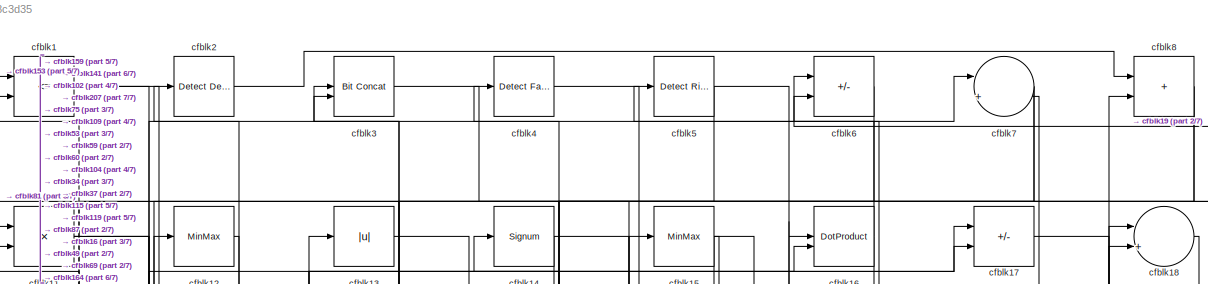
[diagram: root canvas - part 1/7, full width, top band]
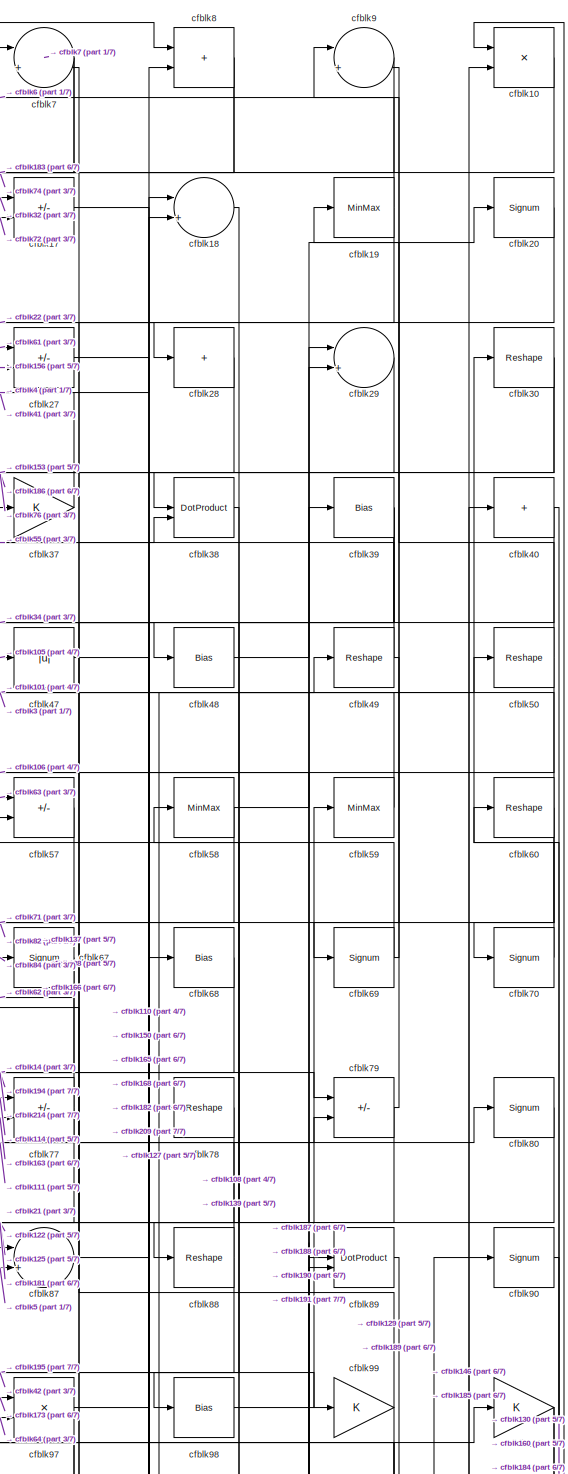
[diagram: root canvas - part 2/7, top right region]
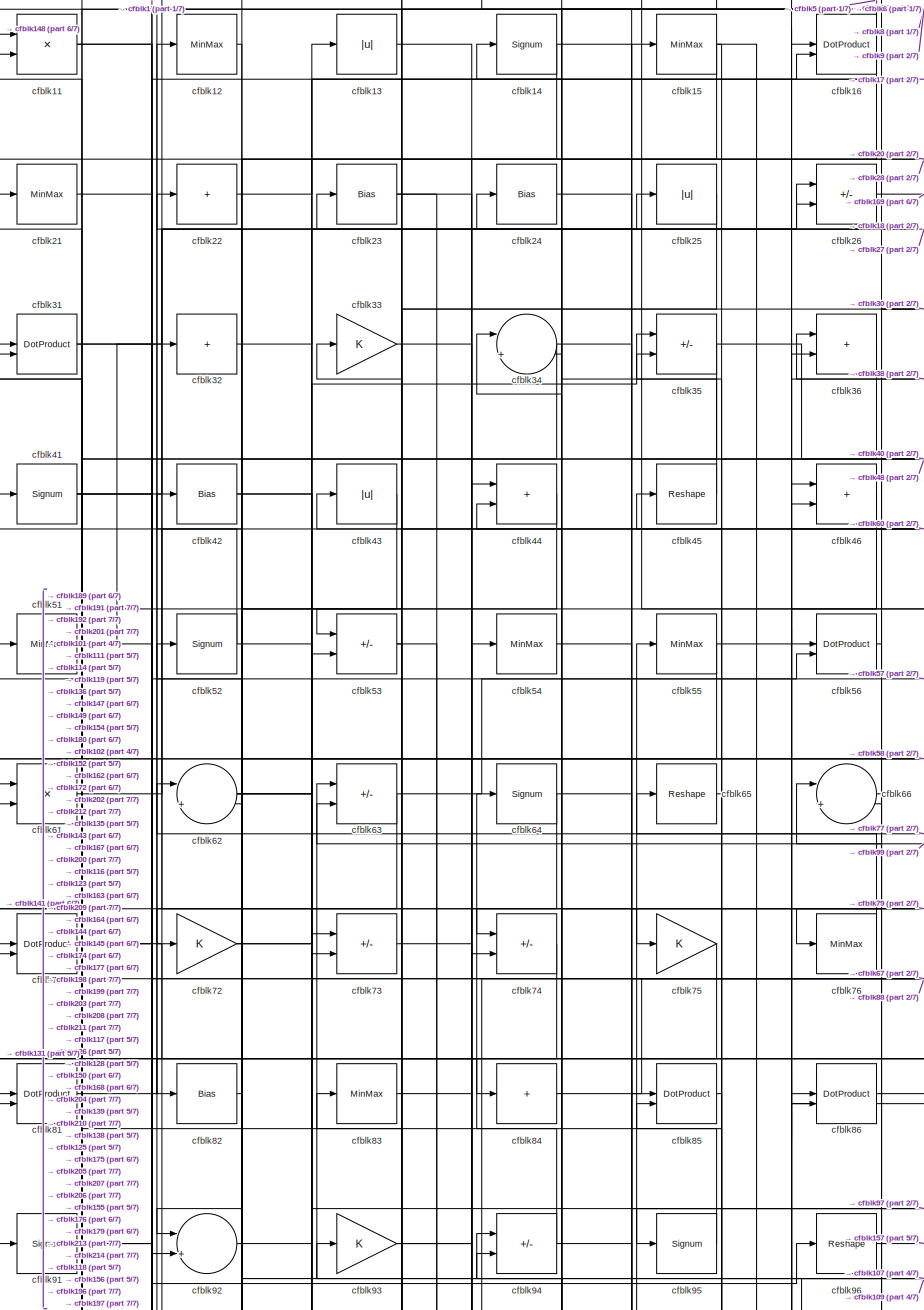
[diagram: root canvas - part 3/7, top left region]
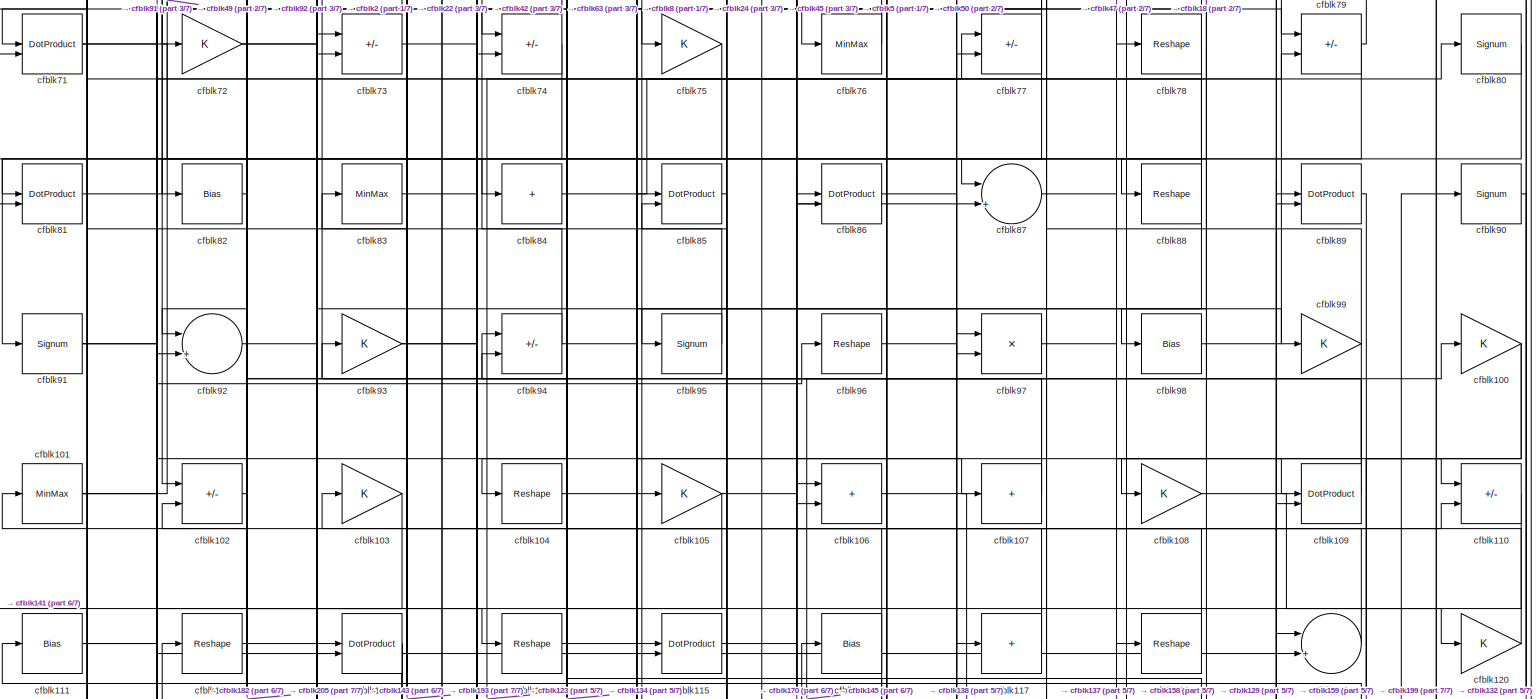
[diagram: root canvas - part 4/7, full width, middle band]
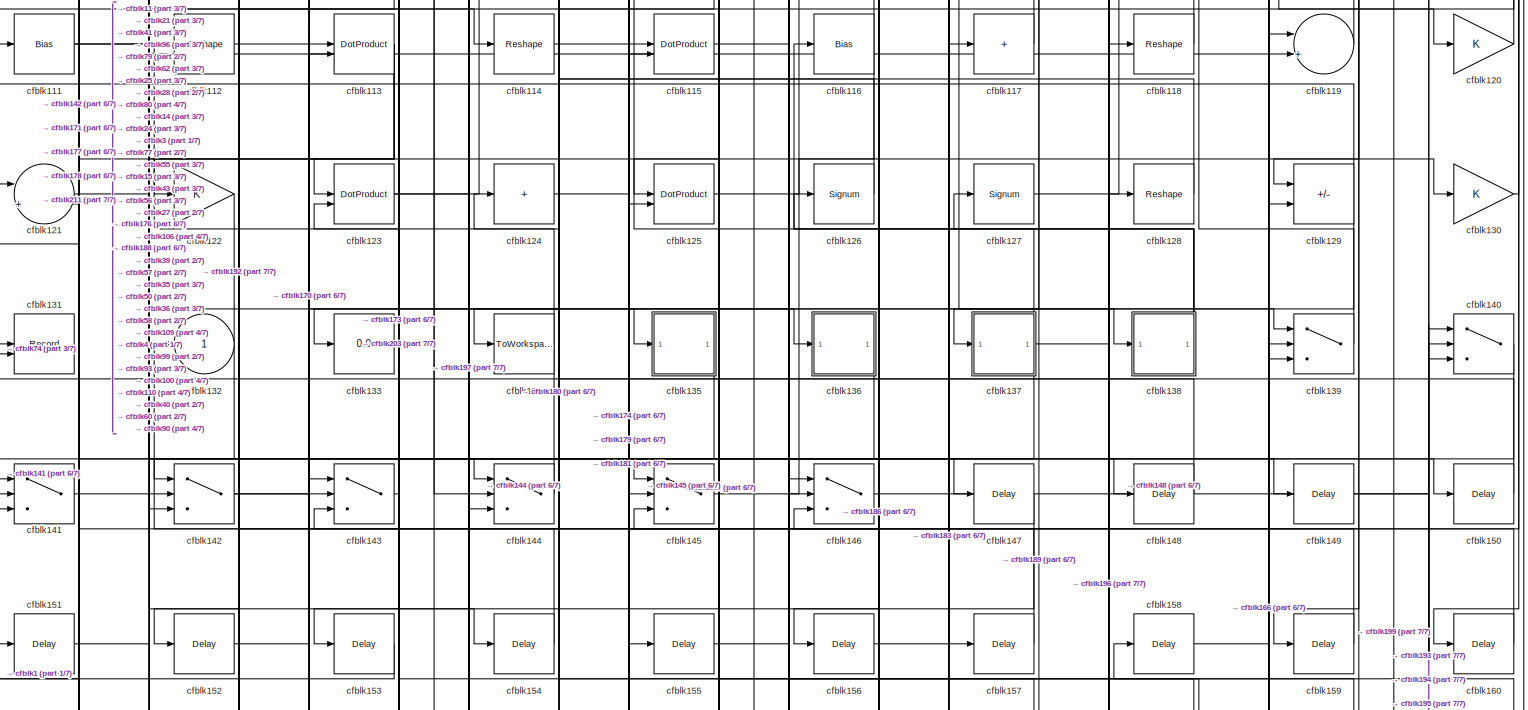
[diagram: root canvas - part 5/7, full width, middle band]
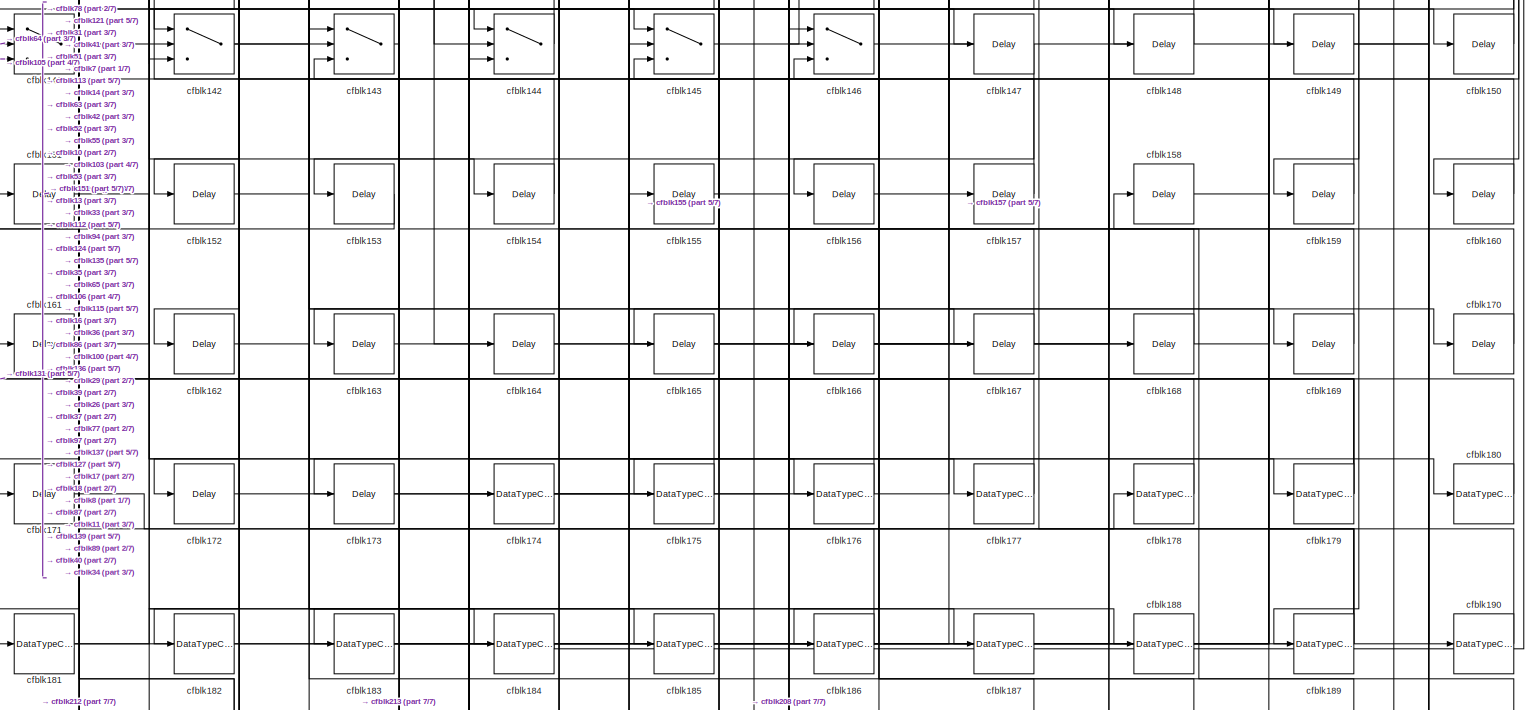
[diagram: root canvas - part 6/7, full width, bottom band]
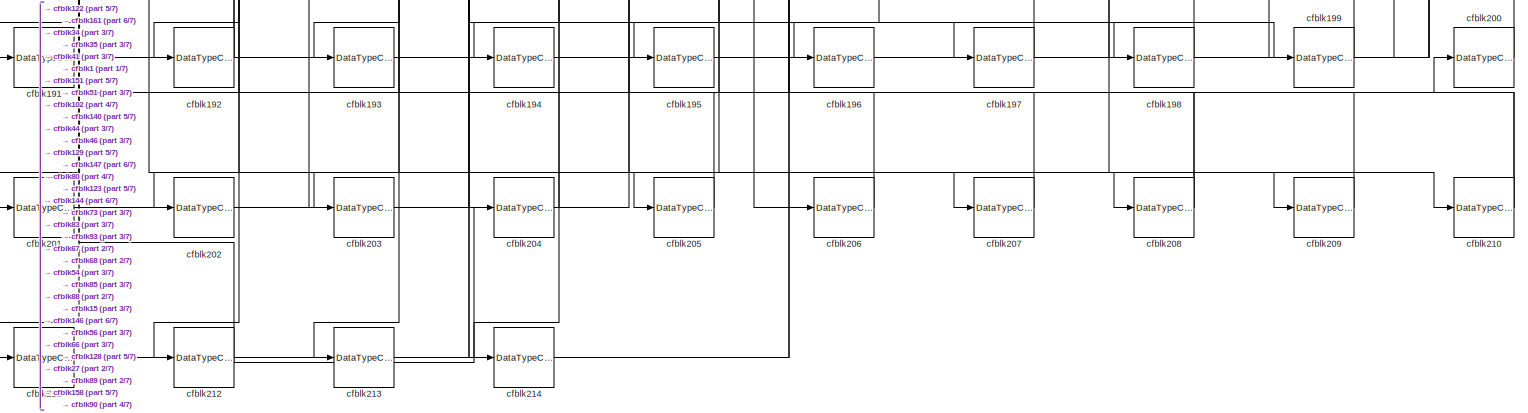
[diagram: root canvas - part 7/7, full width, bottom band]
MODEL slx_3350518c3d35
KIND model
CONFIG AbsTol = auto
CONFIG EnableMultiTasking = off
CONFIG FixedStep = auto
CONFIG MaxStep = auto
CONFIG MinStep = auto
CONFIG RelTol = 1e-3
CONFIG SampleTimeConstraint = Unconstrained
CONFIG SolverName = VariableStepAuto
CONFIG StartTime = 0.0
CONFIG StopTime = 10.0
BLOCK [RelationalOperator] cfblk1
  InputSameDT = off
  Operator = <=
  OutDataTypeStr = boolean
BLOCK [Product] cfblk10
  Inputs = */
  RndMeth = Zero
  SaturateOnIntegerOverflow = on
BLOCK [Gain] cfblk100
BLOCK [MinMax] cfblk101
BLOCK [Sum] cfblk102
  IconShape = rectangular
  Inputs = +-
BLOCK [Gain] cfblk103
BLOCK [Reshape] cfblk104
BLOCK [Gain] cfblk105
BLOCK [Sum] cfblk106
  IconShape = rectangular
BLOCK [Sum] cfblk107
  IconShape = rectangular
  Inputs = +
BLOCK [Gain] cfblk108
BLOCK [DotProduct] cfblk109
  OutDataTypeStr = Inherit: Inherit via internal rule
BLOCK [Product] cfblk11
  Inputs = */
  RndMeth = Zero
  SaturateOnIntegerOverflow = on
BLOCK [Sum] cfblk110
  IconShape = rectangular
  Inputs = +-
BLOCK [Bias] cfblk111
  Bias = 0.0
  SaturateOnIntegerOverflow = off
BLOCK [Reshape] cfblk112
BLOCK [DotProduct] cfblk113
  OutDataTypeStr = Inherit: Inherit via internal rule
BLOCK [Reshape] cfblk114
BLOCK [DotProduct] cfblk115
  OutDataTypeStr = Inherit: Inherit via internal rule
BLOCK [Bias] cfblk116
  Bias = 0.0
  SaturateOnIntegerOverflow = off
BLOCK [Sum] cfblk117
  IconShape = rectangular
  Inputs = +
BLOCK [Reshape] cfblk118
BLOCK [Sum] cfblk119
  Inputs = |++
BLOCK [MinMax] cfblk12
BLOCK [Gain] cfblk120
BLOCK [Sum] cfblk121
  Inputs = |++
BLOCK [Gain] cfblk122
BLOCK [DotProduct] cfblk123
  OutDataTypeStr = Inherit: Inherit via internal rule
BLOCK [Sum] cfblk124
  IconShape = rectangular
  Inputs = +
BLOCK [DotProduct] cfblk125
  OutDataTypeStr = Inherit: Inherit via internal rule
BLOCK [Signum] cfblk126
BLOCK [Signum] cfblk127
BLOCK [Reshape] cfblk128
BLOCK [Sum] cfblk129
  IconShape = rectangular
  Inputs = +-
BLOCK [Abs] cfblk13
  SaturateOnIntegerOverflow = off
BLOCK [Gain] cfblk130
BLOCK [Record] cfblk131
  CompatibilityTag = XY
  FileSettingsInternal = {"entries":[{"content":{"excelSettings":{"content":{},"type":"Streamout.ExcelSettings"}},"type":"Streamout.FileSettingStorage","uuid":""}],"packageUris":["http:\/\/schema.mathworks.com\/mf0\/streamout_blocks\/R2020a"],"version":"1.0"}
  Layout = [1 1]
  SignalsInternal = {"entries":[{"content":{"signals":[{"content":{"blockPath":[],"dimensions":[1],"domain":"","lineColor":"#a2142f","plots":[1],"port":1,"signalID":882,"signalName":"XY Graph:1"},"type":"RecordBlkView.Signal","uuid":""},{"content":{"blockPath":[],"dimensions":[1],"domain":"","lineColor":"#139fff","plots":[1],"port":2,"signalID":885,"signalName":"XY Graph:2"},"type":"RecordBlkView.Signal","uuid":""}]}...<+144ch>
  VisualizationBindings = {"xyplotplugin":{"info":[{"series":[{"bindingParametersList":[{"parameter":"X-Axis","signalID":882,"signalName":"XY Graph:1"},{"parameter":"Y-Axis","signalID":885,"signalName":"XY Graph:2"}],"seriesID":5313}],"subplotID":1}]}}
  st = -1
BLOCK [Outport] cfblk132
  VectorParamsAs1DForOutWhenUnconnected = off
BLOCK [Display] cfblk133
  Decimation = 1
BLOCK [ToWorkspace] cfblk134
  MaxDataPoints = inf
  SampleTime = -1
  SaveFormat = Timeseries
  VariableName = simout
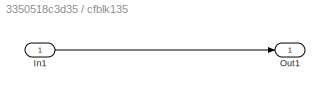
BLOCK [SubSystem] cfblk135
  LibrarySourceBlock = hdlsllib/Ports &\nSubsystems/Subsystem
BLOCK [Inport] cfblk135/In1
BLOCK [Outport] cfblk135/Out1
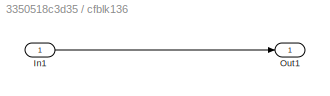
BLOCK [SubSystem] cfblk136
  LibrarySourceBlock = hdlsllib/Ports &\nSubsystems/Subsystem
BLOCK [Inport] cfblk136/In1
BLOCK [Outport] cfblk136/Out1
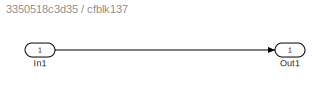
BLOCK [SubSystem] cfblk137
  LibrarySourceBlock = hdlsllib/Ports &\nSubsystems/Subsystem
BLOCK [Inport] cfblk137/In1
BLOCK [Outport] cfblk137/Out1
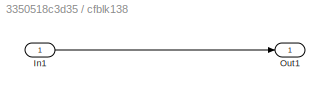
BLOCK [SubSystem] cfblk138
  LibrarySourceBlock = hdlsllib/Ports &\nSubsystems/Subsystem
BLOCK [Inport] cfblk138/In1
BLOCK [Outport] cfblk138/Out1
BLOCK [Switch] cfblk139
  InputSameDT = off
  SaturateOnIntegerOverflow = off
BLOCK [Signum] cfblk14
BLOCK [Switch] cfblk140
  InputSameDT = off
  SaturateOnIntegerOverflow = off
BLOCK [Switch] cfblk141
  InputSameDT = off
  SaturateOnIntegerOverflow = off
BLOCK [Switch] cfblk142
  InputSameDT = off
  SaturateOnIntegerOverflow = off
BLOCK [Switch] cfblk143
  InputSameDT = off
  SaturateOnIntegerOverflow = off
BLOCK [Switch] cfblk144
  InputSameDT = off
  SaturateOnIntegerOverflow = off
BLOCK [Switch] cfblk145
  InputSameDT = off
  SaturateOnIntegerOverflow = off
BLOCK [Switch] cfblk146
  InputSameDT = off
  SaturateOnIntegerOverflow = off
BLOCK [Delay] cfblk147
  InputPortMap = u0
  SampleTime = 1
BLOCK [Delay] cfblk148
  InputPortMap = u0
  SampleTime = 1
BLOCK [Delay] cfblk149
  InputPortMap = u0
  SampleTime = 1
BLOCK [MinMax] cfblk15
BLOCK [Delay] cfblk150
  InputPortMap = u0
  SampleTime = 1
BLOCK [Delay] cfblk151
  InputPortMap = u0
  SampleTime = 1
BLOCK [Delay] cfblk152
  InputPortMap = u0
  SampleTime = 1
BLOCK [Delay] cfblk153
  InputPortMap = u0
  SampleTime = 1
BLOCK [Delay] cfblk154
  InputPortMap = u0
  SampleTime = 1
BLOCK [Delay] cfblk155
  InputPortMap = u0
  SampleTime = 1
BLOCK [Delay] cfblk156
  InputPortMap = u0
  SampleTime = 1
BLOCK [Delay] cfblk157
  InputPortMap = u0
  SampleTime = 1
BLOCK [Delay] cfblk158
  InputPortMap = u0
  SampleTime = 1
BLOCK [Delay] cfblk159
  InputPortMap = u0
  SampleTime = 1
BLOCK [DotProduct] cfblk16
  OutDataTypeStr = Inherit: Inherit via internal rule
BLOCK [Delay] cfblk160
  InputPortMap = u0
  SampleTime = 1
BLOCK [Delay] cfblk161
  InputPortMap = u0
  SampleTime = 1
BLOCK [Delay] cfblk162
  InputPortMap = u0
  SampleTime = 1
BLOCK [Delay] cfblk163
  InputPortMap = u0
  SampleTime = 1
BLOCK [Delay] cfblk164
  InputPortMap = u0
  SampleTime = 1
BLOCK [Delay] cfblk165
  InputPortMap = u0
  SampleTime = 1
BLOCK [Delay] cfblk166
  InputPortMap = u0
  SampleTime = 1
BLOCK [Delay] cfblk167
  InputPortMap = u0
  SampleTime = 1
BLOCK [Delay] cfblk168
  InputPortMap = u0
  SampleTime = 1
BLOCK [Delay] cfblk169
  InputPortMap = u0
  SampleTime = 1
BLOCK [Sum] cfblk17
  IconShape = rectangular
  Inputs = +-
BLOCK [Delay] cfblk170
  InputPortMap = u0
  SampleTime = 1
BLOCK [Delay] cfblk171
  InputPortMap = u0
  SampleTime = 1
BLOCK [Delay] cfblk172
  InputPortMap = u0
  SampleTime = 1
BLOCK [Delay] cfblk173
  InputPortMap = u0
  SampleTime = 1
BLOCK [DataTypeConversion] cfblk174
  OutDataTypeStr = uint8
  RndMeth = Floor
  SaturateOnIntegerOverflow = off
BLOCK [DataTypeConversion] cfblk175
  OutDataTypeStr = uint8
  RndMeth = Floor
  SaturateOnIntegerOverflow = off
BLOCK [DataTypeConversion] cfblk176
  OutDataTypeStr = uint8
  RndMeth = Floor
  SaturateOnIntegerOverflow = off
BLOCK [DataTypeConversion] cfblk177
  OutDataTypeStr = uint8
  RndMeth = Floor
  SaturateOnIntegerOverflow = off
BLOCK [DataTypeConversion] cfblk178
  OutDataTypeStr = uint8
  RndMeth = Floor
  SaturateOnIntegerOverflow = off
BLOCK [DataTypeConversion] cfblk179
  RndMeth = Floor
  SaturateOnIntegerOverflow = off
BLOCK [Sum] cfblk18
  Inputs = |++
BLOCK [DataTypeConversion] cfblk180
  OutDataTypeStr = uint8
  RndMeth = Floor
  SaturateOnIntegerOverflow = off
BLOCK [DataTypeConversion] cfblk181
  RndMeth = Floor
  SaturateOnIntegerOverflow = off
BLOCK [DataTypeConversion] cfblk182
  OutDataTypeStr = uint8
  RndMeth = Floor
  SaturateOnIntegerOverflow = off
BLOCK [DataTypeConversion] cfblk183
  RndMeth = Floor
  SaturateOnIntegerOverflow = off
BLOCK [DataTypeConversion] cfblk184
  OutDataTypeStr = uint8
  RndMeth = Floor
  SaturateOnIntegerOverflow = off
BLOCK [DataTypeConversion] cfblk185
  OutDataTypeStr = uint8
  RndMeth = Floor
  SaturateOnIntegerOverflow = off
BLOCK [DataTypeConversion] cfblk186
  RndMeth = Floor
  SaturateOnIntegerOverflow = off
BLOCK [DataTypeConversion] cfblk187
  OutDataTypeStr = uint8
  RndMeth = Floor
  SaturateOnIntegerOverflow = off
BLOCK [DataTypeConversion] cfblk188
  OutDataTypeStr = uint8
  RndMeth = Floor
  SaturateOnIntegerOverflow = off
BLOCK [DataTypeConversion] cfblk189
  RndMeth = Floor
  SaturateOnIntegerOverflow = off
BLOCK [MinMax] cfblk19
BLOCK [DataTypeConversion] cfblk190
  OutDataTypeStr = uint8
  RndMeth = Floor
  SaturateOnIntegerOverflow = off
BLOCK [DataTypeConversion] cfblk191
  OutDataTypeStr = uint8
  RndMeth = Floor
  SaturateOnIntegerOverflow = off
BLOCK [DataTypeConversion] cfblk192
  RndMeth = Floor
  SaturateOnIntegerOverflow = off
BLOCK [DataTypeConversion] cfblk193
  OutDataTypeStr = uint8
  RndMeth = Floor
  SaturateOnIntegerOverflow = off
BLOCK [DataTypeConversion] cfblk194
  OutDataTypeStr = uint8
  RndMeth = Floor
  SaturateOnIntegerOverflow = off
BLOCK [DataTypeConversion] cfblk195
  OutDataTypeStr = uint8
  RndMeth = Floor
  SaturateOnIntegerOverflow = off
BLOCK [DataTypeConversion] cfblk196
  OutDataTypeStr = uint8
  RndMeth = Floor
  SaturateOnIntegerOverflow = off
BLOCK [DataTypeConversion] cfblk197
  OutDataTypeStr = uint8
  RndMeth = Floor
  SaturateOnIntegerOverflow = off
BLOCK [DataTypeConversion] cfblk198
  OutDataTypeStr = uint8
  RndMeth = Floor
  SaturateOnIntegerOverflow = off
BLOCK [DataTypeConversion] cfblk199
  RndMeth = Floor
  SaturateOnIntegerOverflow = off
BLOCK [Reference] cfblk2  REF=simulink/Logic and Bit
Operations/Detect
Decrease
  LibrarySourceBlock = hdlsllib/Logic and Bit\nOperations/Detect\nDecrease
  SourceBlock = simulink/Logic and Bit\nOperations/Detect\nDecrease
  SourceType = Detect Decrease
BLOCK [Signum] cfblk20
BLOCK [DataTypeConversion] cfblk200
  OutDataTypeStr = uint8
  RndMeth = Floor
  SaturateOnIntegerOverflow = off
BLOCK [DataTypeConversion] cfblk201
  OutDataTypeStr = uint8
  RndMeth = Floor
  SaturateOnIntegerOverflow = off
BLOCK [DataTypeConversion] cfblk202
  OutDataTypeStr = uint8
  RndMeth = Floor
  SaturateOnIntegerOverflow = off
BLOCK [DataTypeConversion] cfblk203
  OutDataTypeStr = uint8
  RndMeth = Floor
  SaturateOnIntegerOverflow = off
BLOCK [DataTypeConversion] cfblk204
  OutDataTypeStr = uint8
  RndMeth = Floor
  SaturateOnIntegerOverflow = off
BLOCK [DataTypeConversion] cfblk205
  OutDataTypeStr = uint8
  RndMeth = Floor
  SaturateOnIntegerOverflow = off
BLOCK [DataTypeConversion] cfblk206
  OutDataTypeStr = uint8
  RndMeth = Floor
  SaturateOnIntegerOverflow = off
BLOCK [DataTypeConversion] cfblk207
  OutDataTypeStr = uint8
  RndMeth = Floor
  SaturateOnIntegerOverflow = off
BLOCK [DataTypeConversion] cfblk208
  RndMeth = Floor
  SaturateOnIntegerOverflow = off
BLOCK [DataTypeConversion] cfblk209
  OutDataTypeStr = uint8
  RndMeth = Floor
  SaturateOnIntegerOverflow = off
BLOCK [MinMax] cfblk21
BLOCK [DataTypeConversion] cfblk210
  RndMeth = Floor
  SaturateOnIntegerOverflow = off
BLOCK [DataTypeConversion] cfblk211
  OutDataTypeStr = uint8
  RndMeth = Floor
  SaturateOnIntegerOverflow = off
BLOCK [DataTypeConversion] cfblk212
  RndMeth = Floor
  SaturateOnIntegerOverflow = off
BLOCK [DataTypeConversion] cfblk213
  OutDataTypeStr = uint8
  RndMeth = Floor
  SaturateOnIntegerOverflow = off
BLOCK [DataTypeConversion] cfblk214
  OutDataTypeStr = uint8
  RndMeth = Floor
  SaturateOnIntegerOverflow = off
BLOCK [Sum] cfblk22
  IconShape = rectangular
  Inputs = +
BLOCK [Bias] cfblk23
  Bias = 0.0
  SaturateOnIntegerOverflow = off
BLOCK [Bias] cfblk24
  Bias = 0.0
  SaturateOnIntegerOverflow = off
BLOCK [Abs] cfblk25
  SaturateOnIntegerOverflow = off
BLOCK [Sum] cfblk26
  IconShape = rectangular
  Inputs = +-
BLOCK [Sum] cfblk27
  IconShape = rectangular
  Inputs = +-
BLOCK [Sum] cfblk28
  IconShape = rectangular
  Inputs = +
BLOCK [Sum] cfblk29
  Inputs = |++
BLOCK [Reference] cfblk3  REF=hdlsllib/Logic and Bit
Operations/Bit Concat
  SourceBlock = hdlsllib/Logic and Bit\nOperations/Bit Concat
  SourceType = Bit Concat
BLOCK [Reshape] cfblk30
BLOCK [DotProduct] cfblk31
  OutDataTypeStr = Inherit: Inherit via internal rule
BLOCK [Sum] cfblk32
  IconShape = rectangular
  Inputs = +
BLOCK [Gain] cfblk33
BLOCK [Sum] cfblk34
  Inputs = |++
BLOCK [Sum] cfblk35
  IconShape = rectangular
  Inputs = +-
BLOCK [Sum] cfblk36
  IconShape = rectangular
BLOCK [Gain] cfblk37
BLOCK [DotProduct] cfblk38
  OutDataTypeStr = Inherit: Inherit via internal rule
BLOCK [Bias] cfblk39
  Bias = 0.0
  SaturateOnIntegerOverflow = off
BLOCK [Reference] cfblk4  REF=hdlsllib/Logic and Bit
Operations/Detect Fall
Negative
  SourceBlock = hdlsllib/Logic and Bit\nOperations/Detect Fall\nNegative
  SourceType = Detect Fall Negative
BLOCK [Sum] cfblk40
  IconShape = rectangular
  Inputs = +
BLOCK [Signum] cfblk41
BLOCK [Bias] cfblk42
  Bias = 0.0
  SaturateOnIntegerOverflow = off
BLOCK [Abs] cfblk43
  SaturateOnIntegerOverflow = off
BLOCK [Sum] cfblk44
  IconShape = rectangular
BLOCK [Reshape] cfblk45
BLOCK [Sum] cfblk46
  IconShape = rectangular
BLOCK [Abs] cfblk47
  SaturateOnIntegerOverflow = off
BLOCK [Bias] cfblk48
  Bias = 0.0
  SaturateOnIntegerOverflow = off
BLOCK [Reshape] cfblk49
BLOCK [Reference] cfblk5  REF=hdlsllib/Logic and Bit
Operations/Detect Rise
Nonnegative
  SourceBlock = hdlsllib/Logic and Bit\nOperations/Detect Rise\nNonnegative
  SourceType = Detect Rise Nonnegative
BLOCK [Reshape] cfblk50
BLOCK [MinMax] cfblk51
BLOCK [Signum] cfblk52
BLOCK [Sum] cfblk53
  IconShape = rectangular
  Inputs = +-
BLOCK [MinMax] cfblk54
BLOCK [MinMax] cfblk55
BLOCK [DotProduct] cfblk56
  OutDataTypeStr = Inherit: Inherit via internal rule
BLOCK [Sum] cfblk57
  IconShape = rectangular
  Inputs = +-
BLOCK [MinMax] cfblk58
BLOCK [MinMax] cfblk59
BLOCK [Sum] cfblk6
  IconShape = rectangular
  Inputs = +-
BLOCK [Reshape] cfblk60
BLOCK [Product] cfblk61
  Inputs = */
  RndMeth = Zero
  SaturateOnIntegerOverflow = on
BLOCK [Sum] cfblk62
  Inputs = |++
BLOCK [Sum] cfblk63
  IconShape = rectangular
  Inputs = +-
BLOCK [Signum] cfblk64
BLOCK [Reshape] cfblk65
BLOCK [Sum] cfblk66
  Inputs = |++
BLOCK [Signum] cfblk67
BLOCK [Bias] cfblk68
  Bias = 0.0
  SaturateOnIntegerOverflow = off
BLOCK [Signum] cfblk69
BLOCK [Sum] cfblk7
  Inputs = |++
BLOCK [Signum] cfblk70
BLOCK [DotProduct] cfblk71
  OutDataTypeStr = Inherit: Inherit via internal rule
BLOCK [Gain] cfblk72
BLOCK [Sum] cfblk73
  IconShape = rectangular
  Inputs = +-
BLOCK [Sum] cfblk74
  IconShape = rectangular
  Inputs = +-
BLOCK [Gain] cfblk75
BLOCK [MinMax] cfblk76
BLOCK [Sum] cfblk77
  IconShape = rectangular
  Inputs = +-
BLOCK [Reshape] cfblk78
BLOCK [Sum] cfblk79
  IconShape = rectangular
  Inputs = +-
BLOCK [Sum] cfblk8
  IconShape = rectangular
BLOCK [Signum] cfblk80
BLOCK [DotProduct] cfblk81
  OutDataTypeStr = Inherit: Inherit via internal rule
BLOCK [Bias] cfblk82
  Bias = 0.0
  SaturateOnIntegerOverflow = off
BLOCK [MinMax] cfblk83
BLOCK [Sum] cfblk84
  IconShape = rectangular
  Inputs = +
BLOCK [DotProduct] cfblk85
  OutDataTypeStr = Inherit: Inherit via internal rule
BLOCK [DotProduct] cfblk86
  OutDataTypeStr = Inherit: Inherit via internal rule
BLOCK [Sum] cfblk87
  Inputs = |++
BLOCK [Reshape] cfblk88
BLOCK [DotProduct] cfblk89
  OutDataTypeStr = Inherit: Inherit via internal rule
BLOCK [Sum] cfblk9
  Inputs = |++
BLOCK [Signum] cfblk90
BLOCK [Signum] cfblk91
BLOCK [Sum] cfblk92
  Inputs = |++
BLOCK [Gain] cfblk93
BLOCK [Sum] cfblk94
  IconShape = rectangular
  Inputs = +-
BLOCK [Signum] cfblk95
BLOCK [Reshape] cfblk96
BLOCK [Product] cfblk97
  Inputs = */
  RndMeth = Zero
  SaturateOnIntegerOverflow = on
BLOCK [Bias] cfblk98
  Bias = 0.0
  SaturateOnIntegerOverflow = off
BLOCK [Gain] cfblk99
NET cfblk100:1 -> cfblk129:1, cfblk159:1
NET cfblk101:1 -> cfblk49:1, cfblk92:2
LINE cfblk102:1 -> cfblk22:1
LINE cfblk103:1 -> cfblk182:1
LINE cfblk104:1 -> cfblk105:1
NET cfblk105:1 -> cfblk141:3, cfblk47:1
LINE cfblk106:1 -> cfblk138:1
NET cfblk107:1 -> cfblk42:1, cfblk45:1
LINE cfblk108:1 -> cfblk120:1
NET cfblk109:1 -> cfblk2:1, cfblk63:1
LINE cfblk10:1 -> cfblk183:1
LINE cfblk110:1 -> cfblk134:1
NET cfblk111:1 -> cfblk79:2, cfblk96:1
LINE cfblk112:1 -> cfblk170:1
NET cfblk113:1 -> cfblk142:1, cfblk142:3, cfblk171:1
LINE cfblk114:1 -> cfblk77:1
LINE cfblk115:1 -> cfblk148:1
NET cfblk116:1 -> cfblk133:1, cfblk43:1
LINE cfblk117:1 -> cfblk94:1
LINE cfblk118:1 -> cfblk36:1
LINE cfblk119:1 -> cfblk93:1
NET cfblk11:1 -> cfblk114:1, cfblk119:2
LINE cfblk120:1 -> cfblk101:1
LINE cfblk121:1 -> cfblk176:1
LINE cfblk122:1 -> cfblk211:1
NET cfblk123:1 -> cfblk197:1, cfblk80:1
LINE cfblk124:1 -> cfblk179:1
LINE cfblk125:1 -> cfblk130:1
LINE cfblk126:1 -> cfblk14:1
LINE cfblk127:1 -> cfblk50:1
LINE cfblk128:1 -> cfblk24:1
NET cfblk129:1 -> cfblk111:1, cfblk203:1
LINE cfblk12:1 -> cfblk92:1
LINE cfblk130:1 -> cfblk60:1
LINE cfblk135/In1:1 -> cfblk135/Out1:1
LINE cfblk135:1 -> cfblk141:1
LINE cfblk136/In1:1 -> cfblk136/Out1:1
LINE cfblk136:1 -> cfblk173:1
LINE cfblk137/In1:1 -> cfblk137/Out1:1
NET cfblk137:1 -> cfblk110:2, cfblk116:1, cfblk165:1
LINE cfblk138/In1:1 -> cfblk138/Out1:1
NET cfblk138:1 -> cfblk126:1, cfblk55:1, cfblk57:2
LINE cfblk139:1 -> cfblk58:1
LINE cfblk13:1 -> cfblk145:1
LINE cfblk140:1 -> cfblk192:1
LINE cfblk141:1 -> cfblk7:1
NET cfblk142:1 -> cfblk144:1, cfblk184:1
LINE cfblk143:1 -> cfblk103:1
LINE cfblk144:1 -> cfblk112:1
LINE cfblk145:1 -> cfblk100:1
LINE cfblk146:1 -> cfblk40:1
LINE cfblk147:1 -> cfblk213:1
LINE cfblk148:1 -> cfblk11:1
LINE cfblk149:1 -> cfblk190:1
NET cfblk14:1 -> cfblk172:1, cfblk79:1
LINE cfblk150:1 -> cfblk34:1
LINE cfblk151:1 -> cfblk188:1
LINE cfblk152:1 -> cfblk113:2
LINE cfblk153:1 -> cfblk1:1
LINE cfblk154:1 -> cfblk62:2
LINE cfblk155:1 -> cfblk86:2
LINE cfblk156:1 -> cfblk27:2
LINE cfblk157:1 -> cfblk145:2
LINE cfblk158:1 -> cfblk109:2
LINE cfblk159:1 -> cfblk1:2
NET cfblk15:1 -> cfblk125:1, cfblk152:1, cfblk206:1
LINE cfblk160:1 -> cfblk123:2
LINE cfblk161:1 -> cfblk142:2
LINE cfblk162:1 -> cfblk185:1
LINE cfblk163:1 -> cfblk77:2
LINE cfblk164:1 -> cfblk8:2
LINE cfblk165:1 -> cfblk18:2
LINE cfblk166:1 -> cfblk139:3
LINE cfblk167:1 -> cfblk143:3
LINE cfblk168:1 -> cfblk94:2
LINE cfblk169:1 -> cfblk35:2
NET cfblk16:1 -> cfblk5:1, cfblk61:2
LINE cfblk170:1 -> cfblk106:1
LINE cfblk171:1 -> cfblk178:1
LINE cfblk172:1 -> cfblk36:2
LINE cfblk173:1 -> cfblk97:1
LINE cfblk174:1 -> cfblk155:1
LINE cfblk175:1 -> cfblk33:1
LINE cfblk176:1 -> cfblk86:1
LINE cfblk177:1 -> cfblk121:1
LINE cfblk178:1 -> cfblk121:2
NET cfblk179:1 -> cfblk131:1, cfblk145:3, cfblk16:1
LINE cfblk17:1 -> cfblk150:1
LINE cfblk180:1 -> cfblk124:1
NET cfblk181:1 -> cfblk115:2, cfblk187:1
LINE cfblk182:1 -> cfblk78:1
NET cfblk183:1 -> cfblk139:2, cfblk37:1
LINE cfblk184:1 -> cfblk10:1
LINE cfblk185:1 -> cfblk10:2
NET cfblk186:1 -> cfblk113:1, cfblk146:3
LINE cfblk187:1 -> cfblk29:1
LINE cfblk188:1 -> cfblk29:2
NET cfblk189:1 -> cfblk127:1, cfblk146:2, cfblk31:2
LINE cfblk18:1 -> cfblk108:1
LINE cfblk190:1 -> cfblk89:1
LINE cfblk191:1 -> cfblk89:2
NET cfblk192:1 -> cfblk151:1, cfblk51:1
LINE cfblk193:1 -> cfblk140:1
LINE cfblk194:1 -> cfblk140:2
LINE cfblk195:1 -> cfblk140:3
LINE cfblk196:1 -> cfblk128:1
LINE cfblk197:1 -> cfblk66:1
LINE cfblk198:1 -> cfblk66:2
NET cfblk199:1 -> cfblk158:1, cfblk90:1
NET cfblk19:1 -> cfblk6:1, cfblk87:1
NET cfblk1:1 -> cfblk207:1, cfblk75:1
LINE cfblk200:1 -> cfblk73:1
LINE cfblk201:1 -> cfblk73:2
LINE cfblk202:1 -> cfblk15:1
LINE cfblk203:1 -> cfblk44:1
LINE cfblk204:1 -> cfblk44:2
LINE cfblk205:1 -> cfblk102:2
LINE cfblk206:1 -> cfblk85:1
LINE cfblk207:1 -> cfblk85:2
NET cfblk208:1 -> cfblk146:1, cfblk161:1
LINE cfblk209:1 -> cfblk83:1
LINE cfblk20:1 -> cfblk74:2
NET cfblk210:1 -> cfblk200:1, cfblk56:1
LINE cfblk211:1 -> cfblk54:1
NET cfblk212:1 -> cfblk144:3, cfblk204:1, cfblk41:1
LINE cfblk213:1 -> cfblk46:1
LINE cfblk214:1 -> cfblk46:2
LINE cfblk21:1 -> cfblk154:1
LINE cfblk22:1 -> cfblk28:1
NET cfblk23:1 -> cfblk144:2, cfblk177:1
LINE cfblk24:1 -> cfblk109:1
LINE cfblk25:1 -> cfblk123:1
LINE cfblk26:1 -> cfblk169:1
LINE cfblk27:1 -> cfblk209:1
LINE cfblk28:1 -> cfblk153:1
LINE cfblk29:1 -> cfblk186:1
LINE cfblk2:1 -> cfblk8:1
NET cfblk30:1 -> cfblk38:1, cfblk76:1
NET cfblk31:1 -> cfblk180:1, cfblk26:1
LINE cfblk32:1 -> cfblk17:1
LINE cfblk33:1 -> cfblk174:1
NET cfblk34:1 -> cfblk191:1, cfblk48:1
NET cfblk35:1 -> cfblk118:1, cfblk201:1
LINE cfblk36:1 -> cfblk95:1
LINE cfblk37:1 -> cfblk4:1
LINE cfblk38:1 -> cfblk88:1
NET cfblk39:1 -> cfblk137:1, cfblk166:1, cfblk98:1
LINE cfblk3:1 -> cfblk115:1
NET cfblk40:1 -> cfblk160:1, cfblk72:1
NET cfblk41:1 -> cfblk136:1, cfblk147:1, cfblk18:1
NET cfblk42:1 -> cfblk143:1, cfblk99:1
LINE cfblk43:1 -> cfblk71:1
LINE cfblk44:1 -> cfblk202:1
LINE cfblk45:1 -> cfblk23:1
LINE cfblk46:1 -> cfblk212:1
LINE cfblk47:1 -> cfblk110:1
LINE cfblk48:1 -> cfblk20:1
NET cfblk49:1 -> cfblk69:1, cfblk6:2
LINE cfblk4:1 -> cfblk119:1
NET cfblk50:1 -> cfblk106:2, cfblk9:2
NET cfblk51:1 -> cfblk149:1, cfblk32:1
NET cfblk52:1 -> cfblk167:1, cfblk31:1
NET cfblk53:1 -> cfblk163:1, cfblk164:1
LINE cfblk54:1 -> cfblk210:1
NET cfblk55:1 -> cfblk143:2, cfblk38:2
LINE cfblk56:1 -> cfblk156:1
LINE cfblk57:1 -> cfblk61:1
NET cfblk58:1 -> cfblk39:1, cfblk82:1
LINE cfblk59:1 -> cfblk3:1
NET cfblk5:1 -> cfblk102:1, cfblk87:2
NET cfblk60:1 -> cfblk3:2, cfblk70:1, cfblk71:2
LINE cfblk61:1 -> cfblk27:1
NET cfblk62:1 -> cfblk135:1, cfblk26:2, cfblk35:1
NET cfblk63:1 -> cfblk162:1, cfblk57:1
NET cfblk64:1 -> cfblk141:2, cfblk97:2
LINE cfblk65:1 -> cfblk175:1
LINE cfblk66:1 -> cfblk196:1
LINE cfblk67:1 -> cfblk194:1
LINE cfblk68:1 -> cfblk214:1
NET cfblk69:1 -> cfblk19:1, cfblk7:2
LINE cfblk6:1 -> cfblk34:2
LINE cfblk70:1 -> cfblk30:1
NET cfblk71:1 -> cfblk56:2, cfblk84:1
NET cfblk72:1 -> cfblk13:1, cfblk17:2
LINE cfblk73:1 -> cfblk199:1
LINE cfblk74:1 -> cfblk131:2
LINE cfblk75:1 -> cfblk91:1
LINE cfblk76:1 -> cfblk65:1
NET cfblk77:1 -> cfblk125:2, cfblk62:1
LINE cfblk78:1 -> cfblk181:1
NET cfblk79:1 -> cfblk122:1, cfblk9:1
NET cfblk7:1 -> cfblk53:1, cfblk81:1
LINE cfblk80:1 -> cfblk193:1
LINE cfblk81:1 -> cfblk12:1
LINE cfblk82:1 -> cfblk52:1
LINE cfblk83:1 -> cfblk208:1
LINE cfblk84:1 -> cfblk67:1
LINE cfblk85:1 -> cfblk205:1
LINE cfblk86:1 -> cfblk117:1
LINE cfblk87:1 -> cfblk168:1
NET cfblk88:1 -> cfblk195:1, cfblk21:1
LINE cfblk89:1 -> cfblk189:1
NET cfblk8:1 -> cfblk104:1, cfblk81:2
LINE cfblk90:1 -> cfblk132:1
NET cfblk91:1 -> cfblk107:1, cfblk16:2
LINE cfblk92:1 -> cfblk53:2
NET cfblk93:1 -> cfblk198:1, cfblk25:1
NET cfblk94:1 -> cfblk11:2, cfblk139:1
LINE cfblk95:1 -> cfblk64:1
LINE cfblk96:1 -> cfblk157:1
LINE cfblk97:1 -> cfblk68:1
LINE cfblk98:1 -> cfblk59:1
NET cfblk99:1 -> cfblk129:2, cfblk63:2
LINE cfblk9:1 -> cfblk74:1
note: NET lines group one-source signal fan-out (src -> all destinations, sorted); 1:1 wires keep LINE
